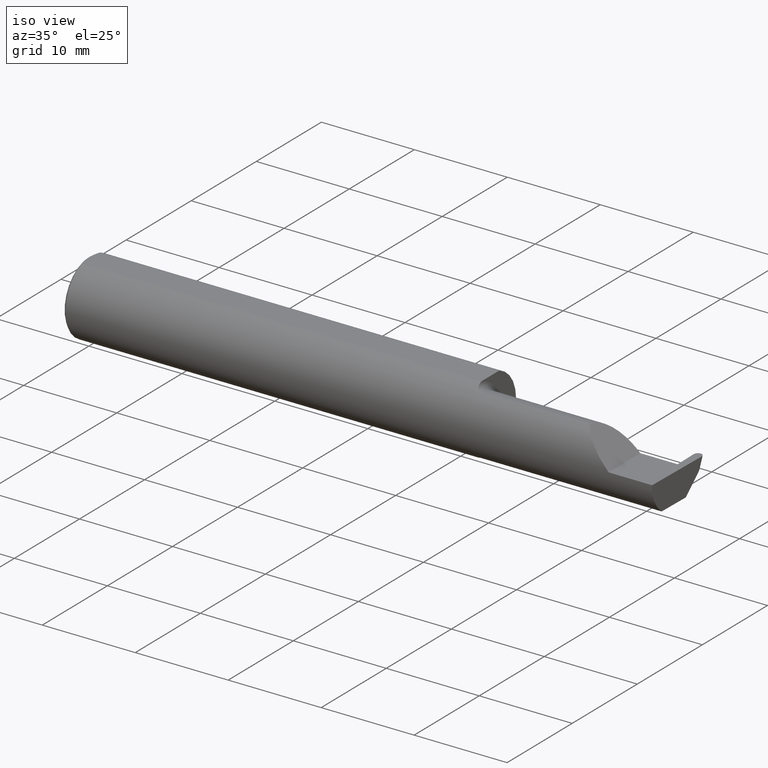
[diagram: clean part render]
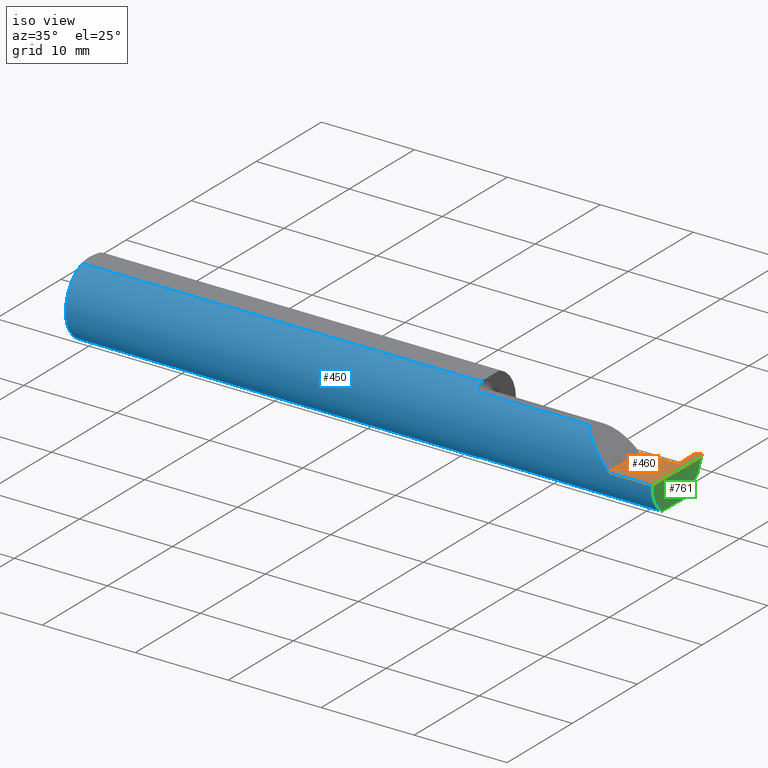
[diagram: same view with three faces highlighted in distinct colors, each labeled with its STEP entity id]
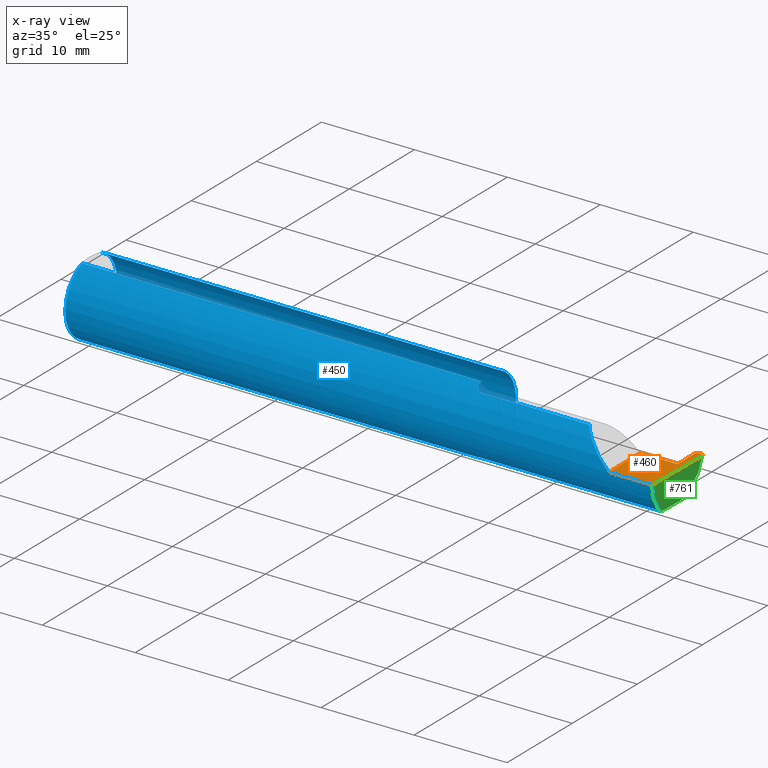
[diagram: x-ray of the same camera — body ghosted, the three highlighted faces saturated]
A machine part, iso view with three faces highlighted in distinct colors.
The next image is the same camera in x-ray (body ghosted, the three faces saturated) — at least one of them is partly hidden behind the body in this view.
Their STEP definitions:

[orange] entity #460 — the highlighted planar face has unit normal (-0, 0, -1).
#6 = CARTESIAN_POINT ( 'NONE',  ( 2.310000000000000053, -0.1560999999999999888, 2.326828918379970872E-17 ) ) ;
#36 = LINE ( 'NONE', #729, #221 ) ;
#50 = EDGE_CURVE ( 'NONE', #381, #419, #693, .T. ) ;
#53 = ORIENTED_EDGE ( 'NONE', *, *, #62, .F. ) ;
#62 = EDGE_CURVE ( 'NONE', #278, #683, #781, .T. ) ;
#68 = PLANE ( 'NONE',  #262 ) ;
#73 = VECTOR ( 'NONE', #688, 39.37007874015748143 ) ;
#99 = DIRECTION ( 'NONE',  ( -0.000000000000000000, 1.000000000000000000, -0.000000000000000000 ) ) ;
#102 = ORIENTED_EDGE ( 'NONE', *, *, #226, .F. ) ;
#117 = DIRECTION ( 'NONE',  ( 1.000000000000000000, 0.000000000000000000, 0.000000000000000000 ) ) ;
#135 = EDGE_CURVE ( 'NONE', #381, #628, #36, .T. ) ;
#141 = FACE_OUTER_BOUND ( 'NONE', #790, .T. ) ;
#149 = DIRECTION ( 'NONE',  ( -0.01745240643727519192, 0.9998476951563914916, -0.000000000000000000 ) ) ;
#150 = LINE ( 'NONE', #233, #610 ) ;
#162 = EDGE_CURVE ( 'NONE', #336, #431, #150, .T. ) ;
#172 = VERTEX_POINT ( 'NONE', #541 ) ;
#184 = ORIENTED_EDGE ( 'NONE', *, *, #273, .T. ) ;
#189 = CARTESIAN_POINT ( 'NONE',  ( 2.500000000000000000, -0.2500000000000000555, 0.000000000000000000 ) ) ;
#217 = CARTESIAN_POINT ( 'NONE',  ( 2.468230857848970228, 0.03589999999999995278, 0.000000000000000000 ) ) ;
#221 = VECTOR ( 'NONE', #277, 39.37007874015747433 ) ;
#226 = EDGE_CURVE ( 'NONE', #628, #336, #571, .T. ) ;
#230 = CARTESIAN_POINT ( 'NONE',  ( 2.499983486910334118, 0.1360408339924935039, 0.000000000000000000 ) ) ;
#233 = CARTESIAN_POINT ( 'NONE',  ( 2.310000000000000053, -0.2500000000000000555, 2.326828918379970872E-17 ) ) ;
#246 = CARTESIAN_POINT ( 'NONE',  ( 1.699999999999999956, 0.03590000000000000135, 9.797174393178831081E-17 ) ) ;
#252 = CARTESIAN_POINT ( 'NONE',  ( 2.466300478715367284, 0.1464913464970357959, 1.915516875273380729E-17 ) ) ;
#262 = AXIS2_PLACEMENT_3D ( 'NONE', #189, #440, #319 ) ;
#273 = EDGE_CURVE ( 'NONE', #599, #172, #519, .T. ) ;
#274 = DIRECTION ( 'NONE',  ( 1.000000000000000000, -0.000000000000000000, -0.000000000000000000 ) ) ;
#277 = DIRECTION ( 'NONE',  ( -0.01745240643727600724, -0.9998476951563914916, 0.000000000000000000 ) ) ;
#278 = VERTEX_POINT ( 'NONE', #544 ) ;
#290 = ORIENTED_EDGE ( 'NONE', *, *, #135, .F. ) ;
#301 = CARTESIAN_POINT ( 'NONE',  ( 2.468230857848970228, 0.03589999999999995278, 0.000000000000000000 ) ) ;
#316 = LINE ( 'NONE', #514, #691 ) ;
#319 = DIRECTION ( 'NONE',  ( -1.000000000000000000, 0.000000000000000000, 1.224646799147353947E-16 ) ) ;
#331 = CARTESIAN_POINT ( 'NONE',  ( 2.466468933666375207, 0.1368405688172235068, 0.000000000000000000 ) ) ;
#336 = VERTEX_POINT ( 'NONE', #6 ) ;
#347 = VECTOR ( 'NONE', #149, 39.37007874015747433 ) ;
#376 = ORIENTED_EDGE ( 'NONE', *, *, #603, .F. ) ;
#381 = VERTEX_POINT ( 'NONE', #708 ) ;
#394 = LINE ( 'NONE', #331, #347 ) ;
#398 = CARTESIAN_POINT ( 'NONE',  ( 2.483396179931517178, 0.1539000000000000090, 0.000000000000000000 ) ) ;
#400 = EDGE_CURVE ( 'NONE', #599, #419, #316, .T. ) ;
#409 = CARTESIAN_POINT ( 'NONE',  ( 2.493284862724282736, 0.1538999999999999257, -1.238434607557906304E-18 ) ) ;
#417 = CARTESIAN_POINT ( 'NONE',  ( 2.500165901284633563, 0.1464913464970357959, -2.081118792332164104E-18 ) ) ;
#419 = VERTEX_POINT ( 'NONE', #570 ) ;
#431 = VERTEX_POINT ( 'NONE', #637 ) ;
#440 = DIRECTION ( 'NONE',  ( -1.224646799147353947E-16, 0.000000000000000000, -1.000000000000000000 ) ) ;
#460 = ADVANCED_FACE ( 'NONE', ( #141 ), #68, .F. ) ;
#481 = LINE ( 'NONE', #246, #666 ) ;
#499 = CARTESIAN_POINT ( 'NONE',  ( 2.466482893089666284, 0.1360408339924935039, 0.000000000000000000 ) ) ;
#514 = CARTESIAN_POINT ( 'NONE',  ( -3.937007874019685528E-05, 0.1539000000000000090, 0.000000000000000000 ) ) ;
#519 =( BOUNDED_CURVE ( )  B_SPLINE_CURVE ( 3, ( #620, #733, #252, #499 ),
 .UNSPECIFIED., .F., .F. ) 
 B_SPLINE_CURVE_WITH_KNOTS ( ( 4, 4 ),
 ( 6.171327673818501225, 7.747253380535273237 ),
 .UNSPECIFIED. ) 
 CURVE ( )  GEOMETRIC_REPRESENTATION_ITEM ( )  RATIONAL_B_SPLINE_CURVE ( ( 1.000000000000000000, 0.8035272986452591804, 0.8035272986452591804, 1.000000000000000000 ) ) 
 REPRESENTATION_ITEM ( '' )  );
#541 = CARTESIAN_POINT ( 'NONE',  ( 2.466482893089666284, 0.1360408339924935039, 0.000000000000000000 ) ) ;
#544 = CARTESIAN_POINT ( 'NONE',  ( 2.461171160187441309, 0.03589999999999995278, 0.000000000000000000 ) ) ;
#554 = CARTESIAN_POINT ( 'NONE',  ( 3.749399456654646757E-32, -0.1560999999999999333, 3.061616997868383634E-16 ) ) ;
#570 = CARTESIAN_POINT ( 'NONE',  ( 2.483396179931517178, 0.1539000000000000090, 0.000000000000000000 ) ) ;
#571 = LINE ( 'NONE', #554, #73 ) ;
#580 = DIRECTION ( 'NONE',  ( 1.000000000000000000, -0.000000000000000000, -0.000000000000000000 ) ) ;
#586 = VECTOR ( 'NONE', #274, 39.37007874015748143 ) ;
#594 = ORIENTED_EDGE ( 'NONE', *, *, #659, .F. ) ;
#599 = VERTEX_POINT ( 'NONE', #728 ) ;
#603 = EDGE_CURVE ( 'NONE', #683, #172, #394, .T. ) ;
#610 = VECTOR ( 'NONE', #99, 39.37007874015748143 ) ;
#620 = CARTESIAN_POINT ( 'NONE',  ( 2.483070200068483224, 0.1539000000000000090, 0.000000000000000000 ) ) ;
#628 = VERTEX_POINT ( 'NONE', #805 ) ;
#637 = CARTESIAN_POINT ( 'NONE',  ( 2.310000000000000053, 0.03590000000000000135, 9.797174393178831081E-17 ) ) ;
#659 = EDGE_CURVE ( 'NONE', #431, #278, #481, .T. ) ;
#666 = VECTOR ( 'NONE', #117, 39.37007874015748143 ) ;
#677 = ORIENTED_EDGE ( 'NONE', *, *, #50, .T. ) ;
#683 = VERTEX_POINT ( 'NONE', #301 ) ;
#688 = DIRECTION ( 'NONE',  ( -1.000000000000000000, -0.000000000000000000, -0.000000000000000000 ) ) ;
#691 = VECTOR ( 'NONE', #580, 39.37007874015748143 ) ;
#693 =( BOUNDED_CURVE ( )  B_SPLINE_CURVE ( 3, ( #230, #417, #409, #398 ),
 .UNSPECIFIED., .F., .F. ) 
 B_SPLINE_CURVE_WITH_KNOTS ( ( 4, 4 ),
 ( 1.677524580234105001, 3.253450286950877679 ),
 .UNSPECIFIED. ) 
 CURVE ( )  GEOMETRIC_REPRESENTATION_ITEM ( )  RATIONAL_B_SPLINE_CURVE ( ( 1.000000000000000000, 0.8035272986452588473, 0.8035272986452588473, 1.000000000000000000 ) ) 
 REPRESENTATION_ITEM ( '' )  );
#708 = CARTESIAN_POINT ( 'NONE',  ( 2.499983486910334118, 0.1360408339924935039, 0.000000000000000000 ) ) ;
#728 = CARTESIAN_POINT ( 'NONE',  ( 2.483070200068483224, 0.1539000000000000090, 0.000000000000000000 ) ) ;
#729 = CARTESIAN_POINT ( 'NONE',  ( 2.499997446333625195, 0.1368405688172235068, 0.000000000000000000 ) ) ;
#733 = CARTESIAN_POINT ( 'NONE',  ( 2.473181517275717223, 0.1538999999999999257, 1.831248456795955123E-17 ) ) ;
#757 = ORIENTED_EDGE ( 'NONE', *, *, #162, .F. ) ;
#769 = ORIENTED_EDGE ( 'NONE', *, *, #400, .F. ) ;
#781 = LINE ( 'NONE', #217, #586 ) ;
#790 = EDGE_LOOP ( 'NONE', ( #769, #184, #376, #53, #594, #757, #102, #290, #677 ) ) ;
#805 = CARTESIAN_POINT ( 'NONE',  ( 2.494884149684813757, -0.1560999999999999888, 0.000000000000000000 ) ) ;

[blue] entity #450 — the highlighted cylindrical surface (partial cylindrical patch) has radius 3.9649 mm, axis along (-1, -0, -0).
#4 = VERTEX_POINT ( 'NONE', #445 ) ;
#6 = CARTESIAN_POINT ( 'NONE',  ( 2.310000000000000053, -0.1560999999999999888, 2.326828918379970872E-17 ) ) ;
#13 = CARTESIAN_POINT ( 'NONE',  ( 2.494884149684813757, -0.1560999999999999888, 0.000000000000000000 ) ) ;
#20 = CIRCLE ( 'NONE', #126, 0.1560999999999999888 ) ;
#23 = EDGE_CURVE ( 'NONE', #552, #4, #635, .T. ) ;
#25 = ORIENTED_EDGE ( 'NONE', *, *, #488, .F. ) ;
#31 = DIRECTION ( 'NONE',  ( 0.000000000000000000, 0.000000000000000000, -1.000000000000000000 ) ) ;
#33 = ORIENTED_EDGE ( 'NONE', *, *, #359, .F. ) ;
#38 = CARTESIAN_POINT ( 'NONE',  ( 2.259912409421231949, -0.1560999999999999333, 0.05008759057876778498 ) ) ;
#41 = CARTESIAN_POINT ( 'NONE',  ( 1.699999999999999956, -0.05497272050753934658, 0.1460999999999998689 ) ) ;
#42 = EDGE_CURVE ( 'NONE', #507, #628, #354, .T. ) ;
#51 = CARTESIAN_POINT ( 'NONE',  ( 1.703804698179399946, -0.07664326672408305896, -0.1360300949145557270 ) ) ;
#54 = CARTESIAN_POINT ( 'NONE',  ( 2.215117332916549220, -0.1336908980339253650, 0.09488266708345012568 ) ) ;
#57 = ORIENTED_EDGE ( 'NONE', *, *, #23, .F. ) ;
#63 = CARTESIAN_POINT ( 'NONE',  ( 1.699999999999999956, 0.000000000000000000, 0.000000000000000000 ) ) ;
#66 = ORIENTED_EDGE ( 'NONE', *, *, #355, .F. ) ;
#73 = VECTOR ( 'NONE', #688, 39.37007874015748143 ) ;
#76 = CARTESIAN_POINT ( 'NONE',  ( 2.493134786043259332, -0.1561000000000000165, -0.05008759057876779885 ) ) ;
#87 = CARTESIAN_POINT ( 'NONE',  ( 1.712810002172886481, -0.08909999999996051634, -0.1281733201567833713 ) ) ;
#90 = CARTESIAN_POINT ( 'NONE',  ( 1.724999999999999867, -0.09360841750841744635, -0.1249186702281520484 ) ) ;
#97 = ORIENTED_EDGE ( 'NONE', *, *, #549, .F. ) ;
#98 = CARTESIAN_POINT ( 'NONE',  ( 1.699999999999999956, 0.05497272050753933964, 0.1460999999999998689 ) ) ;
#105 = CARTESIAN_POINT ( 'NONE',  ( 1.712810002172222568, -0.08909999999984938301, 0.1281733201569305869 ) ) ;
#107 = ORIENTED_EDGE ( 'NONE', *, *, #320, .F. ) ;
#109 = CARTESIAN_POINT ( 'NONE',  ( 2.185081329771846992, -0.09360841750841733533, 0.1249186702281521039 ) ) ;
#111 = VERTEX_POINT ( 'NONE', #346 ) ;
#112 = CARTESIAN_POINT ( 'NONE',  ( 0.009999999999999825001, 0.000000000000000000, -0.1560999999999999888 ) ) ;
#115 = VECTOR ( 'NONE', #138, 39.37007874015748143 ) ;
#124 = ORIENTED_EDGE ( 'NONE', *, *, #638, .F. ) ;
#126 = AXIS2_PLACEMENT_3D ( 'NONE', #589, #710, #31 ) ;
#133 = DIRECTION ( 'NONE',  ( 1.000000000000000000, 0.000000000000000000, 0.000000000000000000 ) ) ;
#138 = DIRECTION ( 'NONE',  ( -1.000000000000000000, -0.000000000000000000, -0.000000000000000000 ) ) ;
#143 = ORIENTED_EDGE ( 'NONE', *, *, #226, .T. ) ;
#147 = VERTEX_POINT ( 'NONE', #459 ) ;
#148 = EDGE_CURVE ( 'NONE', #591, #614, #786, .T. ) ;
#161 = CARTESIAN_POINT ( 'NONE',  ( 2.095733190000000246, -0.09360841750841740472, 0.1249186702281520484 ) ) ;
#174 = CARTESIAN_POINT ( 'NONE',  ( 1.708314215045238615, -0.08466760255782121436, 0.1311795204669789217 ) ) ;
#176 = ORIENTED_EDGE ( 'NONE', *, *, #479, .F. ) ;
#177 = CARTESIAN_POINT ( 'NONE',  ( 1.710319203512565833, -0.08709887368156790655, 0.1295644080582773472 ) ) ;
#178 = CARTESIAN_POINT ( 'NONE',  ( 1.712810002172886481, -0.08909999999996051634, -0.1281733201567833713 ) ) ;
#190 = VERTEX_POINT ( 'NONE', #87 ) ;
#207 = CARTESIAN_POINT ( 'NONE',  ( 1.716072683443917946, -0.09172126259464272180, 0.1263511429915042672 ) ) ;
#211 = B_SPLINE_CURVE_WITH_KNOTS ( 'NONE', 3,
 ( #238, #351, #668, #556, #358, #174, #177, #105 ),
 .UNSPECIFIED., .F., .F.,
 ( 4, 2, 2, 4 ),
 ( 2.042507625476046020E-06, 0.0005263182385139166366, 0.0007884561039581367914, 0.001050593969402356838 ),
 .UNSPECIFIED. ) ;
#216 = CARTESIAN_POINT ( 'NONE',  ( 2.491612023732480807, -0.09360841750841740472, -0.1249186702281520484 ) ) ;
#218 = ORIENTED_EDGE ( 'NONE', *, *, #501, .T. ) ;
#223 = AXIS2_PLACEMENT_3D ( 'NONE', #63, #133, #313 ) ;
#226 = EDGE_CURVE ( 'NONE', #628, #336, #571, .T. ) ;
#229 = DIRECTION ( 'NONE',  ( 1.000000000000000000, 0.000000000000000000, 0.000000000000000000 ) ) ;
#232 = CARTESIAN_POINT ( 'NONE',  ( 1.724999999999999867, -0.09360841750841744635, 0.1249186702281520484 ) ) ;
#238 = CARTESIAN_POINT ( 'NONE',  ( 1.699999999999999956, -0.05502817059483729872, 0.1460791239054556601 ) ) ;
#249 = AXIS2_PLACEMENT_3D ( 'NONE', #767, #759, #750 ) ;
#254 = FACE_OUTER_BOUND ( 'NONE', #343, .T. ) ;
#265 = CARTESIAN_POINT ( 'NONE',  ( 1.712810002172222568, -0.08909999999984938301, 0.1281733201569305869 ) ) ;
#267 = CARTESIAN_POINT ( 'NONE',  ( 1.712810002172222568, -0.08909999999984938301, 0.1281733201569305869 ) ) ;
#269 = VERTEX_POINT ( 'NONE', #428 ) ;
#271 = VECTOR ( 'NONE', #596, 39.37007874015748143 ) ;
#272 = LINE ( 'NONE', #724, #310 ) ;
#280 = CARTESIAN_POINT ( 'NONE',  ( 1.699999999999999956, 0.000000000000000000, 0.000000000000000000 ) ) ;
#287 = VECTOR ( 'NONE', #338, 39.37007874015748143 ) ;
#291 = DIRECTION ( 'NONE',  ( 0.000000000000000000, 0.000000000000000000, -1.000000000000000000 ) ) ;
#310 = VECTOR ( 'NONE', #776, 39.37007874015748143 ) ;
#313 = DIRECTION ( 'NONE',  ( 0.000000000000000000, 0.000000000000000000, -1.000000000000000000 ) ) ;
#320 = EDGE_CURVE ( 'NONE', #190, #687, #412, .T. ) ;
#336 = VERTEX_POINT ( 'NONE', #6 ) ;
#337 = LINE ( 'NONE', #780, #271 ) ;
#338 = DIRECTION ( 'NONE',  ( 1.000000000000000000, 0.000000000000000000, 0.000000000000000000 ) ) ;
#343 = EDGE_LOOP ( 'NONE', ( #25, #665, #143, #542, #709, #33, #124, #97, #405, #218, #737, #57, #66, #107, #176 ) ) ;
#346 = CARTESIAN_POINT ( 'NONE',  ( 1.699999999999999956, -0.05502817059483729872, 0.1460791239054556601 ) ) ;
#351 = CARTESIAN_POINT ( 'NONE',  ( 1.699999999999999734, -0.06156212810510099803, 0.1436177747480845701 ) ) ;
#354 =( BOUNDED_CURVE ( )  B_SPLINE_CURVE ( 3, ( #384, #639, #76, #13 ),
 .UNSPECIFIED., .F., .F. ) 
 B_SPLINE_CURVE_WITH_KNOTS ( ( 4, 4 ),
 ( 0.1796232990704065835, 1.107331509589571494 ),
 .UNSPECIFIED. ) 
 CURVE ( )  GEOMETRIC_REPRESENTATION_ITEM ( )  RATIONAL_B_SPLINE_CURVE ( ( 1.000000000000000000, 0.9295565493311497285, 0.9295565493311497285, 1.000000000000000000 ) ) 
 REPRESENTATION_ITEM ( '' )  );
#355 = EDGE_CURVE ( 'NONE', #687, #552, #770, .T. ) ;
#358 = CARTESIAN_POINT ( 'NONE',  ( 1.705056522840237898, -0.07943464720522702693, 0.1344128205797975040 ) ) ;
#359 = EDGE_CURVE ( 'NONE', #760, #591, #559, .T. ) ;
#360 = CARTESIAN_POINT ( 'NONE',  ( 1.708312875394041752, -0.08466547365232439393, -0.1311808389156051691 ) ) ;
#382 = CYLINDRICAL_SURFACE ( 'NONE', #442, 0.1560999999999999888 ) ;
#384 = CARTESIAN_POINT ( 'NONE',  ( 2.491612023732480807, -0.09360841750841740472, -0.1249186702281520484 ) ) ;
#390 = EDGE_CURVE ( 'NONE', #645, #4, #680, .T. ) ;
#405 = ORIENTED_EDGE ( 'NONE', *, *, #539, .F. ) ;
#412 = B_SPLINE_CURVE_WITH_KNOTS ( 'NONE', 3,
 ( #178, #486, #360, #424, #51, #612, #681, #456 ),
 .UNSPECIFIED., .F., .F.,
 ( 4, 2, 2, 4 ),
 ( 0.0003463854958010611205, 0.0006107451645895071654, 0.0008751048333779532645, 0.001403824170954850667 ),
 .UNSPECIFIED. ) ;
#416 = CARTESIAN_POINT ( 'NONE',  ( 2.185081329771846992, -0.09360841750841733533, 0.1249186702281521039 ) ) ;
#424 = CARTESIAN_POINT ( 'NONE',  ( 1.705057722617701055, -0.07943655142502265010, -0.1344116409581927740 ) ) ;
#428 = CARTESIAN_POINT ( 'NONE',  ( 0.009999999999999825001, -0.05497272050753933964, 0.1460999999999998689 ) ) ;
#436 =( BOUNDED_CURVE ( )  B_SPLINE_CURVE ( 3, ( #485, #38, #54, #109 ),
 .UNSPECIFIED., .F., .F. ) 
 B_SPLINE_CURVE_WITH_KNOTS ( ( 4, 4 ),
 ( 4.712388980384689674, 5.640097190903854418 ),
 .UNSPECIFIED. ) 
 CURVE ( )  GEOMETRIC_REPRESENTATION_ITEM ( )  RATIONAL_B_SPLINE_CURVE ( ( 1.000000000000000000, 0.9295565493311498395, 0.9295565493311498395, 1.000000000000000000 ) ) 
 REPRESENTATION_ITEM ( '' )  );
#442 = AXIS2_PLACEMENT_3D ( 'NONE', #703, #517, #502 ) ;
#445 = CARTESIAN_POINT ( 'NONE',  ( 0.009999999999999825001, 0.05497272050753933964, 0.1460999999999998689 ) ) ;
#450 = ADVANCED_FACE ( 'NONE', ( #254 ), #382, .T. ) ;
#456 = CARTESIAN_POINT ( 'NONE',  ( 1.699999999999999956, -0.05502817059483729872, -0.1460791239054556601 ) ) ;
#458 = CARTESIAN_POINT ( 'NONE',  ( 1.716077244708472893, -0.09172492714866087304, -0.1263485955677198513 ) ) ;
#459 = CARTESIAN_POINT ( 'NONE',  ( 1.724999999999999867, -0.09360841750841744635, -0.1249186702281520484 ) ) ;
#479 = EDGE_CURVE ( 'NONE', #147, #190, #491, .T. ) ;
#482 = CIRCLE ( 'NONE', #534, 0.1560999999999999888 ) ;
#485 = CARTESIAN_POINT ( 'NONE',  ( 2.310000000000000053, -0.1560999999999999888, 2.326828918379970872E-17 ) ) ;
#486 = CARTESIAN_POINT ( 'NONE',  ( 1.710315048287043505, -0.08709553534231927185, -0.1295667287130568834 ) ) ;
#488 = EDGE_CURVE ( 'NONE', #507, #147, #337, .T. ) ;
#491 = B_SPLINE_CURVE_WITH_KNOTS ( 'NONE', 3,
 ( #90, #525, #458, #592 ),
 .UNSPECIFIED., .F., .F.,
 ( 4, 4 ),
 ( 1.958690481381664333E-07, 0.0003463854958010611205 ),
 .UNSPECIFIED. ) ;
#501 = EDGE_CURVE ( 'NONE', #269, #645, #20, .T. ) ;
#502 = DIRECTION ( 'NONE',  ( 0.000000000000000000, 0.000000000000000000, 1.000000000000000000 ) ) ;
#507 = VERTEX_POINT ( 'NONE', #216 ) ;
#517 = DIRECTION ( 'NONE',  ( -1.000000000000000000, -0.000000000000000000, -0.000000000000000000 ) ) ;
#525 = CARTESIAN_POINT ( 'NONE',  ( 1.720361275910303522, -0.09360841750841747411, -0.1249186702281520345 ) ) ;
#534 = AXIS2_PLACEMENT_3D ( 'NONE', #280, #229, #291 ) ;
#539 = EDGE_CURVE ( 'NONE', #269, #686, #272, .T. ) ;
#542 = ORIENTED_EDGE ( 'NONE', *, *, #699, .T. ) ;
#549 = EDGE_CURVE ( 'NONE', #686, #111, #482, .T. ) ;
#552 = VERTEX_POINT ( 'NONE', #98 ) ;
#554 = CARTESIAN_POINT ( 'NONE',  ( 3.749399456654646757E-32, -0.1560999999999999333, 3.061616997868383634E-16 ) ) ;
#556 = CARTESIAN_POINT ( 'NONE',  ( 1.703785422859118270, -0.07659497035394371989, 0.1360571150960168674 ) ) ;
#559 = B_SPLINE_CURVE_WITH_KNOTS ( 'NONE', 3,
 ( #265, #207, #696, #634 ),
 .UNSPECIFIED., .F., .F.,
 ( 4, 4 ),
 ( 0.001050593969402356838, 0.001393966686689398441 ),
 .UNSPECIFIED. ) ;
#571 = LINE ( 'NONE', #554, #73 ) ;
#574 = CARTESIAN_POINT ( 'NONE',  ( 0.000000000000000000, 0.05497272050753933964, 0.1460999999999998689 ) ) ;
#589 = CARTESIAN_POINT ( 'NONE',  ( 0.009999999999999825001, 0.000000000000000000, 0.000000000000000000 ) ) ;
#591 = VERTEX_POINT ( 'NONE', #232 ) ;
#592 = CARTESIAN_POINT ( 'NONE',  ( 1.712810002172886481, -0.08909999999996051634, -0.1281733201567833713 ) ) ;
#596 = DIRECTION ( 'NONE',  ( -1.000000000000000000, -0.000000000000000000, -0.000000000000000000 ) ) ;
#612 = CARTESIAN_POINT ( 'NONE',  ( 1.700847904676645372, -0.06780574120017843209, -0.1407631332654325218 ) ) ;
#614 = VERTEX_POINT ( 'NONE', #416 ) ;
#628 = VERTEX_POINT ( 'NONE', #805 ) ;
#634 = CARTESIAN_POINT ( 'NONE',  ( 1.724999999999999867, -0.09360841750841744635, 0.1249186702281520484 ) ) ;
#635 = LINE ( 'NONE', #574, #115 ) ;
#638 = EDGE_CURVE ( 'NONE', #111, #760, #211, .T. ) ;
#639 = CARTESIAN_POINT ( 'NONE',  ( 2.491961421548583910, -0.1336908980339253650, -0.09488266708345009792 ) ) ;
#645 = VERTEX_POINT ( 'NONE', #112 ) ;
#665 = ORIENTED_EDGE ( 'NONE', *, *, #42, .T. ) ;
#668 = CARTESIAN_POINT ( 'NONE',  ( 1.700844056398637116, -0.06777540567362913548, 0.1407770456887920685 ) ) ;
#680 = CIRCLE ( 'NONE', #249, 0.1560999999999999888 ) ;
#681 = CARTESIAN_POINT ( 'NONE',  ( 1.699999999999997735, -0.06152246774674061114, -0.1436327148497733852 ) ) ;
#686 = VERTEX_POINT ( 'NONE', #41 ) ;
#687 = VERTEX_POINT ( 'NONE', #797 ) ;
#688 = DIRECTION ( 'NONE',  ( -1.000000000000000000, -0.000000000000000000, -0.000000000000000000 ) ) ;
#696 = CARTESIAN_POINT ( 'NONE',  ( 1.720364775055372775, -0.09360841750841747411, 0.1249186702281520345 ) ) ;
#699 = EDGE_CURVE ( 'NONE', #336, #614, #436, .T. ) ;
#703 = CARTESIAN_POINT ( 'NONE',  ( 0.000000000000000000, 0.000000000000000000, 0.000000000000000000 ) ) ;
#709 = ORIENTED_EDGE ( 'NONE', *, *, #148, .F. ) ;
#710 = DIRECTION ( 'NONE',  ( 1.000000000000000000, 0.000000000000000000, 0.000000000000000000 ) ) ;
#724 = CARTESIAN_POINT ( 'NONE',  ( 0.000000000000000000, -0.05497272050753933964, 0.1460999999999998689 ) ) ;
#737 = ORIENTED_EDGE ( 'NONE', *, *, #390, .T. ) ;
#750 = DIRECTION ( 'NONE',  ( 0.000000000000000000, 0.000000000000000000, -1.000000000000000000 ) ) ;
#759 = DIRECTION ( 'NONE',  ( 1.000000000000000000, 0.000000000000000000, 0.000000000000000000 ) ) ;
#760 = VERTEX_POINT ( 'NONE', #267 ) ;
#767 = CARTESIAN_POINT ( 'NONE',  ( 0.009999999999999825001, 0.000000000000000000, 0.000000000000000000 ) ) ;
#770 = CIRCLE ( 'NONE', #223, 0.1560999999999999888 ) ;
#776 = DIRECTION ( 'NONE',  ( 1.000000000000000000, 0.000000000000000000, 0.000000000000000000 ) ) ;
#780 = CARTESIAN_POINT ( 'NONE',  ( 2.095733190000000246, -0.09360841750841740472, -0.1249186702281520484 ) ) ;
#786 = LINE ( 'NONE', #161, #287 ) ;
#797 = CARTESIAN_POINT ( 'NONE',  ( 1.699999999999999956, -0.05502817059483729872, -0.1460791239054556601 ) ) ;
#805 = CARTESIAN_POINT ( 'NONE',  ( 2.494884149684813757, -0.1560999999999999888, 0.000000000000000000 ) ) ;

[green] entity #761 — the highlighted planar face has unit normal (-0.9992, 0.0174, 0.0349).
#13 = CARTESIAN_POINT ( 'NONE',  ( 2.494884149684813757, -0.1560999999999999888, 0.000000000000000000 ) ) ;
#36 = LINE ( 'NONE', #729, #221 ) ;
#42 = EDGE_CURVE ( 'NONE', #507, #628, #354, .T. ) ;
#45 =( BOUNDED_CURVE ( )  B_SPLINE_CURVE ( 3, ( #522, #535, #713, #654 ),
 .UNSPECIFIED., .F., .F. ) 
 B_SPLINE_CURVE_WITH_KNOTS ( ( 4, 4 ),
 ( 0.4273896528388629878, 0.4634648172053268400 ),
 .UNSPECIFIED. ) 
 CURVE ( )  GEOMETRIC_REPRESENTATION_ITEM ( )  RATIONAL_B_SPLINE_CURVE ( ( 1.000000000000000000, 0.9998915514833921492, 0.9998915514833921492, 1.000000000000000000 ) ) 
 REPRESENTATION_ITEM ( '' )  );
#47 = VECTOR ( 'NONE', #236, 39.37007874015748854 ) ;
#60 = LINE ( 'NONE', #685, #47 ) ;
#76 = CARTESIAN_POINT ( 'NONE',  ( 2.493134786043259332, -0.1561000000000000165, -0.05008759057876779885 ) ) ;
#78 = PLANE ( 'NONE',  #771 ) ;
#135 = EDGE_CURVE ( 'NONE', #381, #628, #36, .T. ) ;
#144 = ORIENTED_EDGE ( 'NONE', *, *, #42, .F. ) ;
#164 = DIRECTION ( 'NONE',  ( 0.03867711768363006619, 0.3253245514560481610, 0.9448111011136606230 ) ) ;
#179 = VERTEX_POINT ( 'NONE', #593 ) ;
#186 = LINE ( 'NONE', #247, #205 ) ;
#187 = ORIENTED_EDGE ( 'NONE', *, *, #694, .T. ) ;
#203 = VERTEX_POINT ( 'NONE', #676 ) ;
#205 = VECTOR ( 'NONE', #483, 39.37007874015748854 ) ;
#208 = EDGE_CURVE ( 'NONE', #203, #179, #60, .T. ) ;
#216 = CARTESIAN_POINT ( 'NONE',  ( 2.491612023732480807, -0.09360841750841740472, -0.1249186702281520484 ) ) ;
#221 = VECTOR ( 'NONE', #277, 39.37007874015747433 ) ;
#228 = EDGE_CURVE ( 'NONE', #545, #203, #186, .T. ) ;
#236 = DIRECTION ( 'NONE',  ( -0.01745240643727600377, -0.9998476951563912696, 0.000000000000000000 ) ) ;
#247 = CARTESIAN_POINT ( 'NONE',  ( 2.495602440342458372, 0.07786354519681681907, -0.09636229879120425390 ) ) ;
#257 = CARTESIAN_POINT ( 'NONE',  ( 2.499997446333625195, 0.1368405688172235068, 0.000000000000000000 ) ) ;
#277 = DIRECTION ( 'NONE',  ( -0.01745240643727600724, -0.9998476951563914916, 0.000000000000000000 ) ) ;
#354 =( BOUNDED_CURVE ( )  B_SPLINE_CURVE ( 3, ( #384, #639, #76, #13 ),
 .UNSPECIFIED., .F., .F. ) 
 B_SPLINE_CURVE_WITH_KNOTS ( ( 4, 4 ),
 ( 0.1796232990704065835, 1.107331509589571494 ),
 .UNSPECIFIED. ) 
 CURVE ( )  GEOMETRIC_REPRESENTATION_ITEM ( )  RATIONAL_B_SPLINE_CURVE ( ( 1.000000000000000000, 0.9295565493311497285, 0.9295565493311497285, 1.000000000000000000 ) ) 
 REPRESENTATION_ITEM ( '' )  );
#368 = EDGE_LOOP ( 'NONE', ( #395, #187, #504, #144, #391, #524 ) ) ;
#381 = VERTEX_POINT ( 'NONE', #708 ) ;
#384 = CARTESIAN_POINT ( 'NONE',  ( 2.491612023732480807, -0.09360841750841740472, -0.1249186702281520484 ) ) ;
#391 = ORIENTED_EDGE ( 'NONE', *, *, #493, .T. ) ;
#395 = ORIENTED_EDGE ( 'NONE', *, *, #228, .F. ) ;
#403 = CARTESIAN_POINT ( 'NONE',  ( 2.497599438174871622, 0.1159879026479704034, -0.05823794134005024631 ) ) ;
#483 = DIRECTION ( 'NONE',  ( -0.03701368837992413674, -0.7066222423871549863, -0.7066222423871629799 ) ) ;
#493 = EDGE_CURVE ( 'NONE', #507, #179, #45, .T. ) ;
#498 = CARTESIAN_POINT ( 'NONE',  ( 2.499993570548677990, 0.1361256504244730825, 0.0002463248043608053605 ) ) ;
#504 = ORIENTED_EDGE ( 'NONE', *, *, #135, .T. ) ;
#507 = VERTEX_POINT ( 'NONE', #216 ) ;
#509 = VECTOR ( 'NONE', #164, 39.37007874015748143 ) ;
#522 = CARTESIAN_POINT ( 'NONE',  ( 2.491612023732480807, -0.09360841750841740472, -0.1249186702281520484 ) ) ;
#524 = ORIENTED_EDGE ( 'NONE', *, *, #208, .F. ) ;
#535 = CARTESIAN_POINT ( 'NONE',  ( 2.491636351762904766, -0.09210618219364764825, -0.1249728871357008164 ) ) ;
#545 = VERTEX_POINT ( 'NONE', #403 ) ;
#593 = CARTESIAN_POINT ( 'NONE',  ( 2.491687877921971328, -0.08909999999999985987, -0.1250000000000000278 ) ) ;
#628 = VERTEX_POINT ( 'NONE', #805 ) ;
#629 = FACE_OUTER_BOUND ( 'NONE', #368, .T. ) ;
#639 = CARTESIAN_POINT ( 'NONE',  ( 2.491961421548583910, -0.1336908980339253650, -0.09488266708345009792 ) ) ;
#654 = CARTESIAN_POINT ( 'NONE',  ( 2.491687877921971328, -0.08909999999999985987, -0.1250000000000000278 ) ) ;
#672 = LINE ( 'NONE', #498, #509 ) ;
#676 = CARTESIAN_POINT ( 'NONE',  ( 2.494102364510032643, 0.04922584398802135747, -0.1250000000000000278 ) ) ;
#685 = CARTESIAN_POINT ( 'NONE',  ( 2.491748186259158171, -0.08564493767655950718, -0.1250000000000000278 ) ) ;
#694 = EDGE_CURVE ( 'NONE', #545, #381, #672, .T. ) ;
#708 = CARTESIAN_POINT ( 'NONE',  ( 2.499983486910334118, 0.1360408339924935039, 0.000000000000000000 ) ) ;
#713 = CARTESIAN_POINT ( 'NONE',  ( 2.491661639235123182, -0.09060321336276823401, -0.1250000000000000833 ) ) ;
#729 = CARTESIAN_POINT ( 'NONE',  ( 2.499997446333625195, 0.1368405688172235068, 0.000000000000000000 ) ) ;
#753 = DIRECTION ( 'NONE',  ( -0.9992386149554827179, 0.01744177490282265708, 0.03489949670250104552 ) ) ;
#758 = DIRECTION ( 'NONE',  ( 0.03490480639812536257, 0.000000000000000000, 0.9993906415863165194 ) ) ;
#761 = ADVANCED_FACE ( 'NONE', ( #629 ), #78, .F. ) ;
#771 = AXIS2_PLACEMENT_3D ( 'NONE', #257, #753, #758 ) ;
#805 = CARTESIAN_POINT ( 'NONE',  ( 2.494884149684813757, -0.1560999999999999888, 0.000000000000000000 ) ) ;